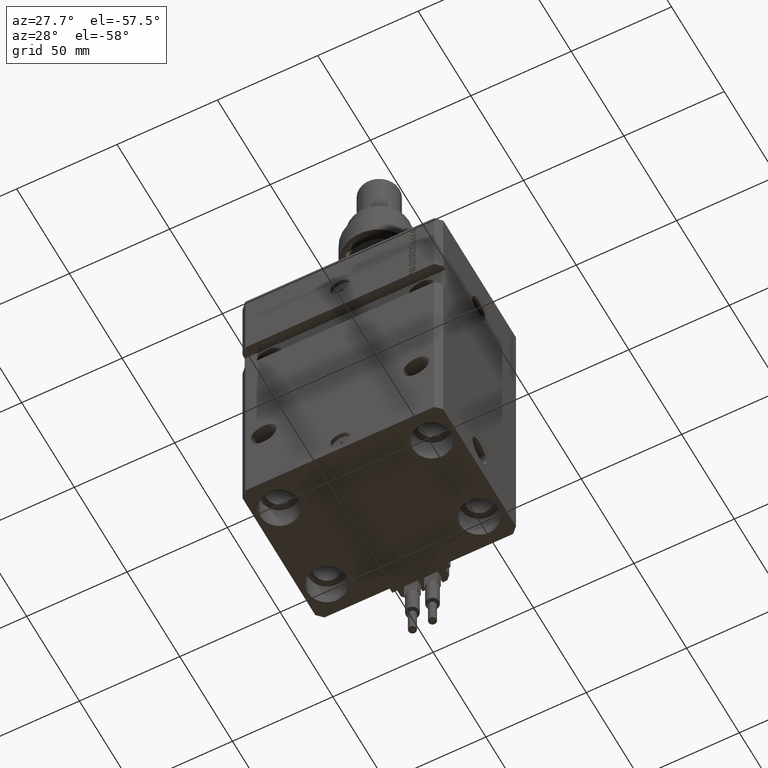
[diagram: clean part render]
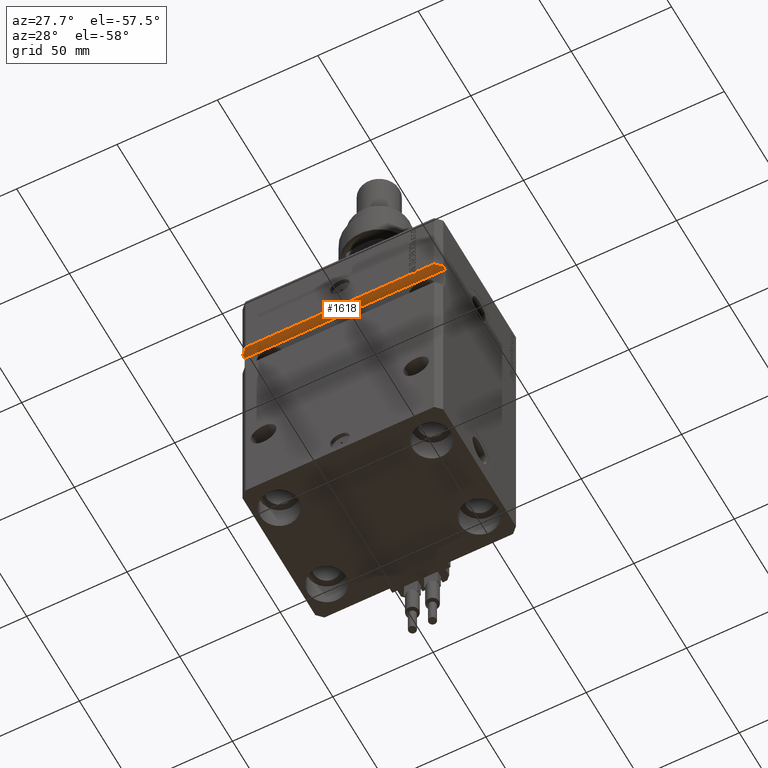
[diagram: same view with one face highlighted and labeled with its STEP entity id]
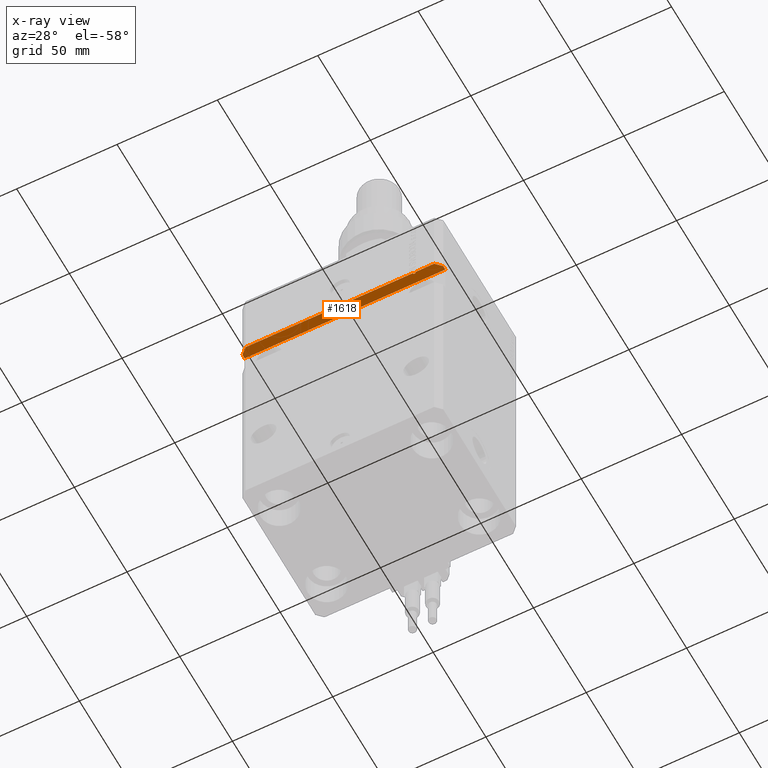
[diagram: x-ray of the same camera — body ghosted, the highlighted face saturated]
A machine part, auxiliary view. The second image highlights one B-rep face of the part: STEP entity #1618.
The next image is the same camera in x-ray: the body ghosted, the highlighted face saturated — about 0% of this face is hidden behind the body in this view.
In plain terms, the highlighted planar face has unit normal (-0, -0, 1).
Its self-contained STEP definition (entity closure, byte-faithful):
#16 = VERTEX_POINT ( 'NONE', #10002 ) ;
#556 = VECTOR ( 'NONE', #25985, 1000.000000000000000 ) ;
#914 = EDGE_CURVE ( 'NONE', #39926, #12020, #39840, .T. ) ;
#1277 = DIRECTION ( 'NONE',  ( 1.176083712526788232E-16, -1.000000000000000000, -0.000000000000000000 ) ) ;
#1509 = EDGE_CURVE ( 'NONE', #6105, #1941, #41285, .T. ) ;
#1618 = ADVANCED_FACE ( 'NONE', ( #37602 ), #17688, .F. ) ;
#1620 = LINE ( 'NONE', #30172, #556 ) ;
#1941 = VERTEX_POINT ( 'NONE', #42705 ) ;
#2517 = CARTESIAN_POINT ( 'NONE',  ( 49.99999999999999289, -37.49999999999999289, -37.49999999999999289 ) ) ;
#3784 = CARTESIAN_POINT ( 'NONE',  ( 47.00000000000000000, -37.49999999999999289, -37.49999999999999289 ) ) ;
#4008 = EDGE_CURVE ( 'NONE', #4640, #39926, #30119, .T. ) ;
#4640 = VERTEX_POINT ( 'NONE', #39410 ) ;
#4833 = CARTESIAN_POINT ( 'NONE',  ( -50.00000000000002842, -32.50000000000000711, -37.50000000000000711 ) ) ;
#5545 = VECTOR ( 'NONE', #7040, 1000.000000000000000 ) ;
#6105 = VERTEX_POINT ( 'NONE', #17041 ) ;
#6176 = CARTESIAN_POINT ( 'NONE',  ( 49.99999999999999289, -34.50000000000001421, -37.49999999999999289 ) ) ;
#6338 = ORIENTED_EDGE ( 'NONE', *, *, #16474, .T. ) ;
#6950 = LINE ( 'NONE', #2517, #25221 ) ;
#7040 = DIRECTION ( 'NONE',  ( 1.176083712526788232E-16, -1.000000000000000000, -0.000000000000000000 ) ) ;
#9114 = VECTOR ( 'NONE', #1277, 1000.000000000000000 ) ;
#9252 = EDGE_CURVE ( 'NONE', #20143, #17801, #29317, .T. ) ;
#10002 = CARTESIAN_POINT ( 'NONE',  ( -46.99999999999997868, -37.50000000000000711, -37.50000000000000711 ) ) ;
#11688 = LINE ( 'NONE', #51569, #19965 ) ;
#12020 = VERTEX_POINT ( 'NONE', #3784 ) ;
#12540 = ORIENTED_EDGE ( 'NONE', *, *, #24777, .T. ) ;
#13183 = VECTOR ( 'NONE', #23414, 1000.000000000000000 ) ;
#13745 = DIRECTION ( 'NONE',  ( -1.387778780781445182E-16, -1.632144020667341874E-32, 1.000000000000000000 ) ) ;
#14358 = CARTESIAN_POINT ( 'NONE',  ( 37.58424947145879713, -36.99999999999999289, -37.49999999999999289 ) ) ;
#14373 = CARTESIAN_POINT ( 'NONE',  ( -50.00000000000002842, -32.50000000000000711, -37.50000000000000711 ) ) ;
#14914 = CARTESIAN_POINT ( 'NONE',  ( -50.00000000000000711, -34.49999999999999289, -37.50000000000000711 ) ) ;
#16335 = VECTOR ( 'NONE', #26543, 1000.000000000000000 ) ;
#16474 = EDGE_CURVE ( 'NONE', #12020, #44239, #23126, .T. ) ;
#17041 = CARTESIAN_POINT ( 'NONE',  ( 36.43456162642952734, -36.99999999999999289, -37.49999999999999289 ) ) ;
#17682 = EDGE_CURVE ( 'NONE', #44239, #30975, #1620, .T. ) ;
#17688 = PLANE ( 'NONE',  #41477 ) ;
#17801 = VERTEX_POINT ( 'NONE', #48257 ) ;
#18584 = CARTESIAN_POINT ( 'NONE',  ( 37.58424947145880424, -37.49999999999999289, -37.49999999999999289 ) ) ;
#18693 = CARTESIAN_POINT ( 'NONE',  ( 49.99999999999999289, -37.49999999999999289, -37.49999999999999289 ) ) ;
#19965 = VECTOR ( 'NONE', #36050, 1000.000000000000000 ) ;
#20143 = VERTEX_POINT ( 'NONE', #4833 ) ;
#20393 = ORIENTED_EDGE ( 'NONE', *, *, #23337, .T. ) ;
#21873 = DIRECTION ( 'NONE',  ( 2.352167425053553291E-16, -1.000000000000000000, 1.632144020667309852E-32 ) ) ;
#22876 = EDGE_CURVE ( 'NONE', #4640, #20143, #11688, .T. ) ;
#23110 = EDGE_LOOP ( 'NONE', ( #29823, #6338, #24653, #20393, #39299, #26187, #12540, #38690, #30190, #39385 ) ) ;
#23126 = LINE ( 'NONE', #18693, #16335 ) ;
#23337 = EDGE_CURVE ( 'NONE', #30975, #6105, #27333, .T. ) ;
#23414 = DIRECTION ( 'NONE',  ( -1.000000000000000000, 0.000000000000000000, -1.387778780781445182E-16 ) ) ;
#24653 = ORIENTED_EDGE ( 'NONE', *, *, #17682, .T. ) ;
#24777 = EDGE_CURVE ( 'NONE', #16, #17801, #31161, .T. ) ;
#25221 = VECTOR ( 'NONE', #26597, 1000.000000000000000 ) ;
#25985 = DIRECTION ( 'NONE',  ( -2.352167425053553291E-16, 1.000000000000000000, -1.632144020667309852E-32 ) ) ;
#26187 = ORIENTED_EDGE ( 'NONE', *, *, #32389, .T. ) ;
#26543 = DIRECTION ( 'NONE',  ( -1.000000000000000000, -1.387778780781445182E-16, -1.387778780781445182E-16 ) ) ;
#26597 = DIRECTION ( 'NONE',  ( -1.000000000000000000, -1.387778780781445182E-16, -1.387778780781445182E-16 ) ) ;
#27003 = DIRECTION ( 'NONE',  ( -0.7071067811865483499, -0.7071067811865467956, -9.813077866773603112E-17 ) ) ;
#27333 = LINE ( 'NONE', #43360, #13183 ) ;
#29317 = LINE ( 'NONE', #14373, #9114 ) ;
#29823 = ORIENTED_EDGE ( 'NONE', *, *, #914, .T. ) ;
#30119 = LINE ( 'NONE', #46138, #5545 ) ;
#30172 = CARTESIAN_POINT ( 'NONE',  ( 37.58424947145880424, -36.99999999999999289, -37.49999999999999289 ) ) ;
#30190 = ORIENTED_EDGE ( 'NONE', *, *, #22876, .F. ) ;
#30975 = VERTEX_POINT ( 'NONE', #14358 ) ;
#31161 = LINE ( 'NONE', #14914, #32443 ) ;
#32389 = EDGE_CURVE ( 'NONE', #1941, #16, #6950, .T. ) ;
#32443 = VECTOR ( 'NONE', #39542, 1000.000000000000114 ) ;
#33140 = CARTESIAN_POINT ( 'NONE',  ( 36.43456162642951313, -36.99999999999999289, -37.49999999999999289 ) ) ;
#35130 = CARTESIAN_POINT ( 'NONE',  ( 46.99999999999999289, -37.50000000000001421, -37.49999999999999289 ) ) ;
#36050 = DIRECTION ( 'NONE',  ( -1.000000000000000000, -1.387778780781445182E-16, -1.387778780781445182E-16 ) ) ;
#37270 = VECTOR ( 'NONE', #21873, 1000.000000000000000 ) ;
#37602 = FACE_OUTER_BOUND ( 'NONE', #23110, .T. ) ;
#38690 = ORIENTED_EDGE ( 'NONE', *, *, #9252, .F. ) ;
#39299 = ORIENTED_EDGE ( 'NONE', *, *, #1509, .T. ) ;
#39385 = ORIENTED_EDGE ( 'NONE', *, *, #4008, .T. ) ;
#39410 = CARTESIAN_POINT ( 'NONE',  ( 49.99999999999999289, -32.49999999999999289, -37.49999999999999289 ) ) ;
#39542 = DIRECTION ( 'NONE',  ( -0.7071067811865491270, 0.7071067811865459074, -9.813077866773612973E-17 ) ) ;
#39840 = LINE ( 'NONE', #35130, #49809 ) ;
#39926 = VERTEX_POINT ( 'NONE', #6176 ) ;
#41285 = LINE ( 'NONE', #33140, #37270 ) ;
#41477 = AXIS2_PLACEMENT_3D ( 'NONE', #46268, #13745, #49953 ) ;
#42705 = CARTESIAN_POINT ( 'NONE',  ( 36.43456162642951313, -37.49999999999999289, -37.49999999999999289 ) ) ;
#43360 = CARTESIAN_POINT ( 'NONE',  ( 5.086562056677741474E-15, -36.99999999999999289, -37.50000000000000000 ) ) ;
#44239 = VERTEX_POINT ( 'NONE', #18584 ) ;
#46138 = CARTESIAN_POINT ( 'NONE',  ( 49.99999999999999289, -32.49999999999999289, -37.49999999999999289 ) ) ;
#46268 = CARTESIAN_POINT ( 'NONE',  ( 49.99999999999999289, -32.49999999999999289, -37.49999999999999289 ) ) ;
#48257 = CARTESIAN_POINT ( 'NONE',  ( -50.00000000000002842, -34.49999999999997158, -37.50000000000000711 ) ) ;
#49809 = VECTOR ( 'NONE', #27003, 1000.000000000000000 ) ;
#49953 = DIRECTION ( 'NONE',  ( 1.000000000000000000, 0.000000000000000000, 1.387778780781445182E-16 ) ) ;
#51569 = CARTESIAN_POINT ( 'NONE',  ( 49.99999999999999289, -32.49999999999999289, -37.49999999999999289 ) ) ;